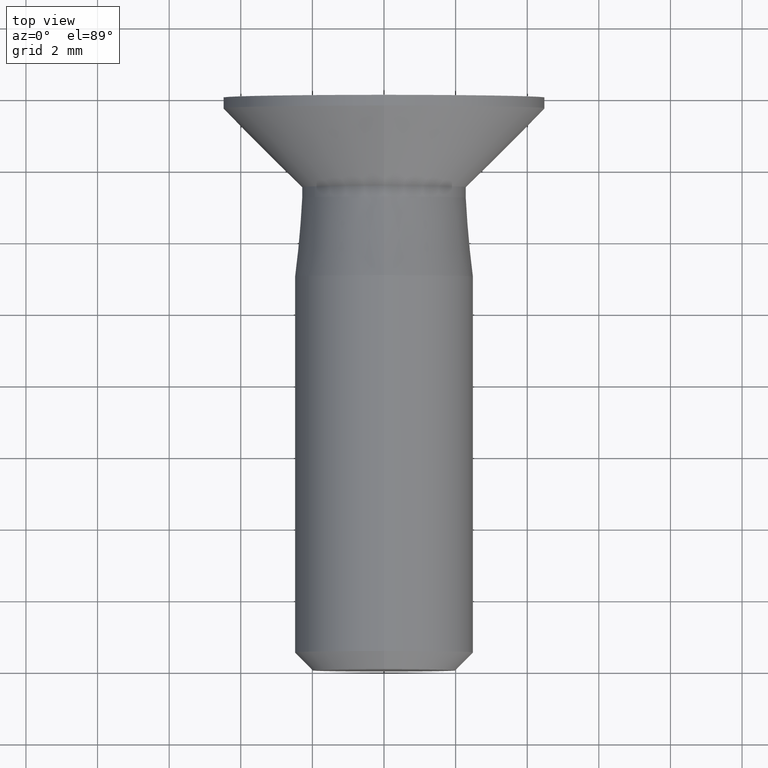
[diagram: clean part render]
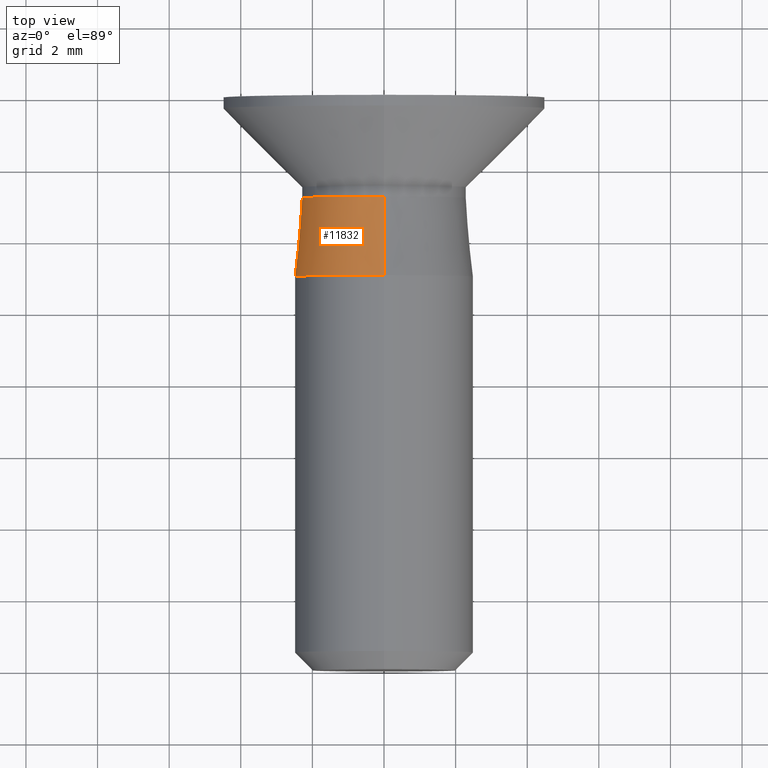
[diagram: same view with one face highlighted and labeled with its STEP entity id]
A machine part, top view. The second image highlights one B-rep face of the part: STEP entity #11832.
In plain terms, the highlighted conical surface has half-angle 5.194 deg.
Its self-contained STEP definition (entity closure, byte-faithful):
#1070 = ORIENTED_EDGE ( 'NONE', *, *, #8567, .F. ) ;
#1087 = DIRECTION ( 'NONE',  ( 0.000000000000000000, 0.000000000000000000, -1.000000000000000000 ) ) ;
#1936 = CARTESIAN_POINT ( 'NONE',  ( 0.000000000000000000, 11.00000000000000000, -2.499999999999999112 ) ) ;
#2019 = AXIS2_PLACEMENT_3D ( 'NONE', #14753, #13720, #1087 ) ;
#2179 = VECTOR ( 'NONE', #5652, 1000.000000000000114 ) ;
#2272 = DIRECTION ( 'NONE',  ( -0.000000000000000000, -1.000000000000000000, -0.000000000000000000 ) ) ;
#2902 = EDGE_CURVE ( 'NONE', #3470, #7933, #7368, .T. ) ;
#3078 = EDGE_LOOP ( 'NONE', ( #4067, #10395, #8062, #1070 ) ) ;
#3470 = VERTEX_POINT ( 'NONE', #4151 ) ;
#4067 = ORIENTED_EDGE ( 'NONE', *, *, #2902, .F. ) ;
#4151 = CARTESIAN_POINT ( 'NONE',  ( 2.816687638038910577E-16, 13.19999999999999929, 2.299999999999998490 ) ) ;
#4470 = LINE ( 'NONE', #7327, #14286 ) ;
#4771 = CIRCLE ( 'NONE', #2019, 2.299999999999998490 ) ;
#5651 = CARTESIAN_POINT ( 'NONE',  ( 0.000000000000000000, 11.00000000000000000, 0.000000000000000000 ) ) ;
#5652 = DIRECTION ( 'NONE',  ( 1.108743115993882326E-17, -0.9958932064677037399, 0.09053574604251873881 ) ) ;
#6078 = CARTESIAN_POINT ( 'NONE',  ( 0.000000000000000000, 13.19999999999999929, -2.299999999999998490 ) ) ;
#6742 = DIRECTION ( 'NONE',  ( 0.000000000000000000, 0.000000000000000000, -1.000000000000000000 ) ) ;
#6781 = DIRECTION ( 'NONE',  ( 0.000000000000000000, 0.000000000000000000, -1.000000000000000000 ) ) ;
#6906 = AXIS2_PLACEMENT_3D ( 'NONE', #5651, #12428, #6742 ) ;
#7327 = CARTESIAN_POINT ( 'NONE',  ( 0.000000000000000000, 11.00000000000000000, -2.499999999999999112 ) ) ;
#7368 = LINE ( 'NONE', #12525, #2179 ) ;
#7532 = CIRCLE ( 'NONE', #9518, 2.499999999999999112 ) ;
#7933 = VERTEX_POINT ( 'NONE', #13831 ) ;
#8062 = ORIENTED_EDGE ( 'NONE', *, *, #9778, .T. ) ;
#8567 = EDGE_CURVE ( 'NONE', #7933, #10551, #7532, .T. ) ;
#8886 = VERTEX_POINT ( 'NONE', #6078 ) ;
#9518 = AXIS2_PLACEMENT_3D ( 'NONE', #14463, #2272, #6781 ) ;
#9619 = FACE_OUTER_BOUND ( 'NONE', #3078, .T. ) ;
#9778 = EDGE_CURVE ( 'NONE', #8886, #10551, #4470, .T. ) ;
#10395 = ORIENTED_EDGE ( 'NONE', *, *, #14292, .T. ) ;
#10551 = VERTEX_POINT ( 'NONE', #1936 ) ;
#11776 = CONICAL_SURFACE ( 'NONE', #6906, 2.499999999999999112, 0.09065988720074533158 ) ;
#11832 = ADVANCED_FACE ( 'NONE', ( #9619 ), #11776, .T. ) ;
#11973 = DIRECTION ( 'NONE',  ( 0.000000000000000000, -0.9958932064677037399, -0.09053574604251873881 ) ) ;
#12428 = DIRECTION ( 'NONE',  ( -0.000000000000000000, -1.000000000000000000, -0.000000000000000000 ) ) ;
#12525 = CARTESIAN_POINT ( 'NONE',  ( 3.061616997868382155E-16, 11.00000000000000000, 2.499999999999999112 ) ) ;
#13720 = DIRECTION ( 'NONE',  ( -0.000000000000000000, -1.000000000000000000, -0.000000000000000000 ) ) ;
#13831 = CARTESIAN_POINT ( 'NONE',  ( 3.061616997868382155E-16, 11.00000000000000000, 2.499999999999999112 ) ) ;
#14286 = VECTOR ( 'NONE', #11973, 1000.000000000000114 ) ;
#14292 = EDGE_CURVE ( 'NONE', #3470, #8886, #4771, .T. ) ;
#14463 = CARTESIAN_POINT ( 'NONE',  ( 0.000000000000000000, 11.00000000000000000, 0.000000000000000000 ) ) ;
#14753 = CARTESIAN_POINT ( 'NONE',  ( 0.000000000000000000, 13.19999999999999929, 0.000000000000000000 ) ) ;